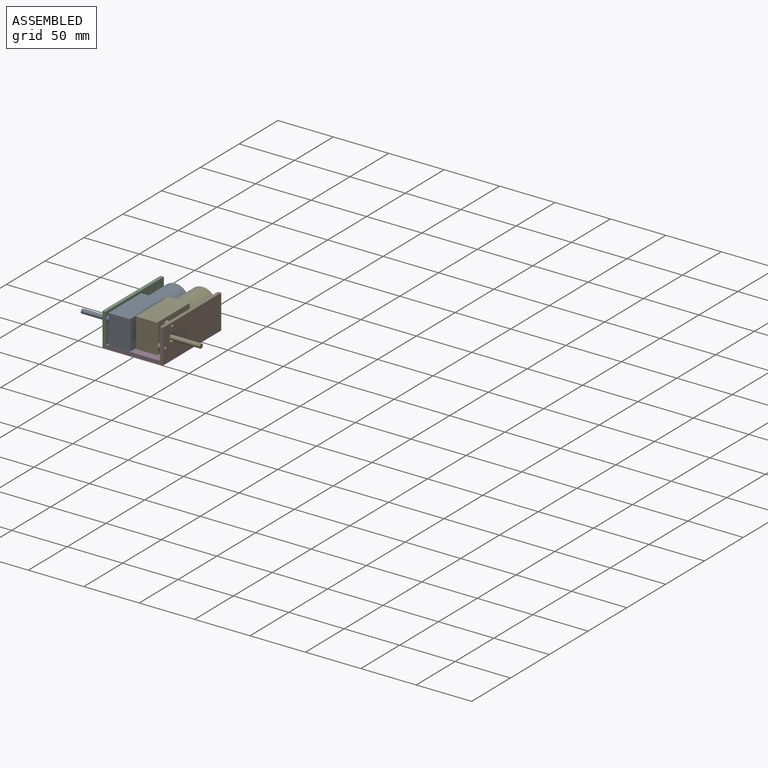
[diagram: assembled view]
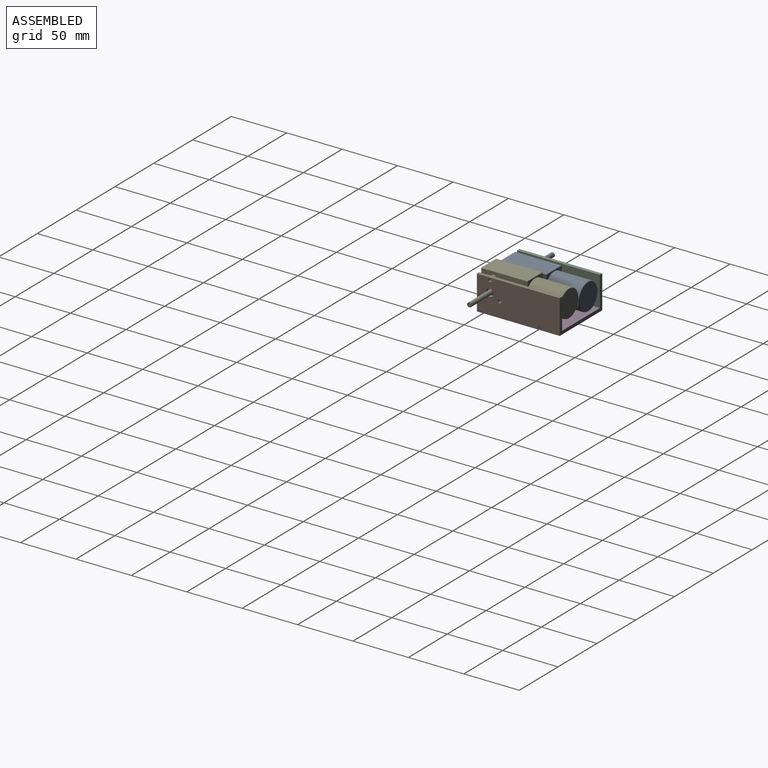
[diagram: assembled view, second angle]
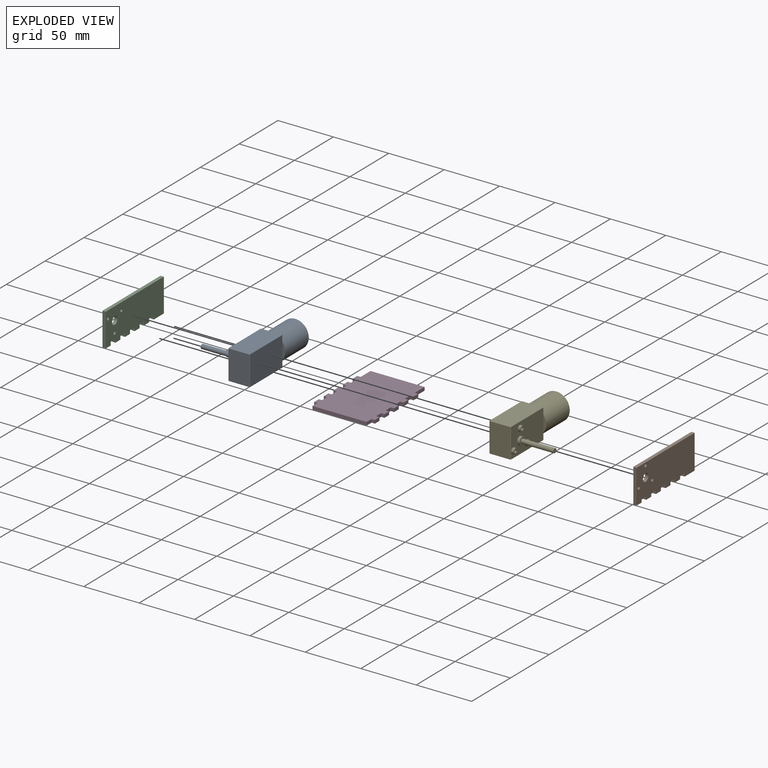
[diagram: exploded view]
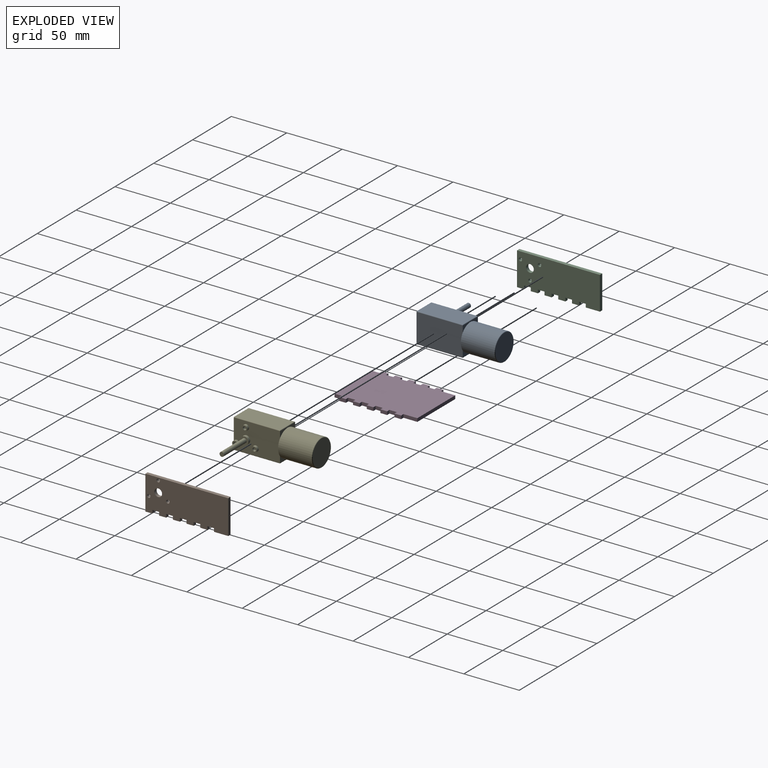
[diagram: exploded view, second angle]
ASSEMBLY  parts=5 mates=3
PART A: 44 faces, bbox 54.6x72.8x27 mm
  f0: plane 19.4x5.6mm, normal (0,1,0), area 43.6mm2, adj f5,f6,f24,f43
  f1: plane 19.4x5.6mm, normal (0,1,0), area 43.6mm2, adj f5,f6,f24,f30
  f2: plane 41x18.4mm, normal (0,0,1), area 754.4mm2, adj f37,f41,f42,f43
  f3: plane 26x18.4mm, normal (0,-1,0), area 478.4mm2, adj f31,f32,f34,f36,f37,f38
  f4: plane 41x18.4mm, normal (0,0,-1), area 754.4mm2, adj f28,f30,f32,f33
  f5: plane 41.5x26mm, normal (1,0,0), area 981.7mm2, adj f0,f1,f7,f10,f14,f18,f23,f28
  f6: plane 41.5x26mm, normal (-1,0,0), area 1079mm2, adj f0,f1,f26,f33,f38,f42
  f7: cylinder r=3.5mm len=7mm, axis (-1,0,0), area 52.8mm2, adj f5,f8
  f8: plane 7x7mm, normal (1,0,0), area 25.9mm2, adj f7,f21
  f9: cylinder r=1.5mm len=3mm, axis (-1,0,0), area 22.6mm2, adj f11,f12
  f10: cylinder r=2.5mm len=5mm, axis (-1,0,0), area 37.7mm2, adj f5,f11
  f11: plane 5x5mm, normal (1,0,0), area 12.6mm2, adj f9,f10
  f12: plane 3x3mm, normal (1,0,0), area 7.1mm2, adj f9
  f13: cylinder r=1.5mm len=3mm, axis (-1,0,0), area 22.6mm2, adj f15,f16
  f14: cylinder r=2.5mm len=5mm, axis (-1,0,0), area 37.7mm2, adj f5,f15,f34
  f15: plane 5x5mm, normal (1,0,0), area 12.6mm2, adj f13,f14
  f16: plane 3x3mm, normal (1,0,0), area 7.1mm2, adj f13
  f17: cylinder r=1.5mm len=3mm, axis (-1,0,0), area 22.6mm2, adj f19,f20
  f18: cylinder r=2.5mm len=5mm, axis (-1,0,0), area 37.7mm2, adj f5,f19
  f19: plane 5x5mm, normal (1,0,0), area 12.6mm2, adj f17,f18
  f20: plane 3x3mm, normal (1,0,0), area 7.1mm2, adj f17
  f21: cylinder r=2mm len=29.3mm, axis (-1,0,0), area 368.2mm2, adj f8,f22
  f22: plane 4x4mm, normal (1,0,0), area 12.6mm2, adj f21
  f23: plane 14.8x2.5mm, normal (0,-1,0), area 25.2mm2, adj f5,f24
  f24: cylinder r=12.2mm len=30.3mm, axis (0,-1,0), area 2322.6mm2, adj f0,f1,f23,f26,f27
  f25: plane 23.4x23.4mm, normal (0,1,0), area 430.1mm2, adj f27
  f26: plane 14.8x2.5mm, normal (0,-1,0), area 25.2mm2, adj f6,f24
  f27: torus R=11.7mm, axis (0,1,0), area 59.3mm2, adj f24,f25
  f28: cylinder r=0.5mm len=41.5mm, axis (0,-1,0), area 32.5mm2, adj f4,f5,f29,f30
  f29: sphere r=0.5mm, area 0.4mm2, adj f28,f31,f32
  f30: cylinder r=0.5mm len=19.4mm, axis (-1,0,0), area 15mm2, adj f1,f4,f28,f33
  f31: cylinder r=0.5mm len=5.55mm, axis (0,0,1), area 4.4mm2, adj f3,f5,f29,f34
  f32: cylinder r=0.5mm len=18.4mm, axis (1,0,0), area 14.5mm2, adj f3,f4,f29,f35
  f33: cylinder r=0.5mm len=41.5mm, axis (0,1,0), area 32.5mm2, adj f4,f6,f30,f35
  f34: bspline ~1.56x0.57mm, area 0.8mm2, adj f3,f14,f31,f36
  f35: sphere r=0.5mm, area 0.4mm2, adj f32,f33,f38
  f36: cylinder r=0.5mm len=19.35mm, axis (0,0,1), area 15.2mm2, adj f3,f5,f34,f39
  f37: cylinder r=0.5mm len=18.4mm, axis (-1,0,0), area 14.5mm2, adj f2,f3,f39,f40
  f38: cylinder r=0.5mm len=26mm, axis (0,0,-1), area 20.4mm2, adj f3,f6,f35,f40
  f39: sphere r=0.5mm, area 0.4mm2, adj f36,f37,f41
  f40: sphere r=0.5mm, area 0.4mm2, adj f37,f38,f42
  f41: cylinder r=0.5mm len=41.5mm, axis (0,1,0), area 32.5mm2, adj f2,f5,f39,f43
  f42: cylinder r=0.5mm len=41.5mm, axis (0,-1,0), area 32.5mm2, adj f2,f6,f40,f43
  f43: cylinder r=0.5mm len=19.4mm, axis (1,0,0), area 15mm2, adj f0,f2,f41,f42
PART B: 30 faces, bbox 74.8x3x30.8 mm
  f0: plane 3x3mm, normal (-1,0,0), area 9mm2, adj f1,f27,f28,f29
  f1: plane 6.4x3mm, normal (0,0,-1), area 19.2mm2, adj f0,f2,f28,f29
  f2: plane 3x3mm, normal (1,0,0), area 9mm2, adj f1,f3,f28,f29
  f3: plane 6x3mm, normal (0,0,-1), area 18mm2, adj f2,f4,f28,f29
  f4: plane 3x3mm, normal (-1,0,0), area 9mm2, adj f3,f5,f28,f29
  f5: plane 6.4x3mm, normal (0,0,-1), area 19.2mm2, adj f4,f6,f28,f29
  f6: plane 3x3mm, normal (1,0,0), area 9mm2, adj f5,f7,f28,f29
  f7: plane 6x3mm, normal (0,0,-1), area 18mm2, adj f6,f8,f28,f29
  f8: plane 3x3mm, normal (-1,0,0), area 9mm2, adj f7,f9,f28,f29
  f9: plane 6.4x3mm, normal (0,0,-1), area 19.2mm2, adj f8,f10,f28,f29
  f10: plane 3x3mm, normal (1,0,0), area 9mm2, adj f9,f11,f28,f29
  f11: plane 6x3mm, normal (0,0,-1), area 18mm2, adj f10,f12,f28,f29
  f12: plane 3x3mm, normal (-1,0,0), area 9mm2, adj f11,f13,f28,f29
  f13: plane 12.8x3mm, normal (0,0,-1), area 38.4mm2, adj f12,f14,f28,f29
  f14: plane 30.8x3mm, normal (1,0,0), area 92.4mm2, adj f13,f15,f28,f29
  f15: plane 74.8x3mm, normal (0,0,1), area 224.4mm2, adj f14,f16,f28,f29
  f16: plane 30.8x3mm, normal (-1,0,0), area 92.4mm2, adj f15,f17,f28,f29
  f17: plane 6.4x3mm, normal (0,0,-1), area 19.2mm2, adj f16,f18,f28,f29
  f18: plane 3x3mm, normal (1,0,0), area 9mm2, adj f17,f19,f28,f29
  f19: plane 6x3mm, normal (0,0,-1), area 18mm2, adj f18,f20,f28,f29
  f20: plane 3x3mm, normal (-1,0,0), area 9mm2, adj f19,f21,f28,f29
  f21: plane 6.4x3mm, normal (0,0,-1), area 19.2mm2, adj f20,f22,f28,f29
  f22: plane 3x3mm, normal (1,0,0), area 9mm2, adj f21,f27,f28,f29
  f23: cylinder r=3.5mm len=7mm, axis (0,1,0), area 66mm2, adj f28,f29
  f24: cylinder r=1.5mm len=3mm, axis (0,1,0), area 28.3mm2, adj f28,f29
  f25: cylinder r=1.5mm len=3mm, axis (0,1,0), area 28.3mm2, adj f28,f29
  f26: cylinder r=1.5mm len=3mm, axis (0,1,0), area 28.3mm2, adj f28,f29
  f27: plane 6x3mm, normal (0,0,-1), area 18mm2, adj f0,f22,f28,f29
  f28: plane 74.8x30.8mm, normal (0,-1,0), area 2154.1mm2, adj f0,f1,f2,f3,f4,f5,f6,f7
  f29: plane 74.8x30.8mm, normal (0,1,0), area 2154.1mm2, adj f0,f1,f2,f3,f4,f5,f6,f7
PART C: 30 faces, bbox 74.8x3x30 mm
  f0: plane 3x3mm, normal (-1,0,0), area 9mm2, adj f1,f27,f28,f29
  f1: plane 6.4x3mm, normal (0,0,-1), area 19.2mm2, adj f0,f2,f28,f29
  f2: plane 3x3mm, normal (1,0,0), area 9mm2, adj f1,f3,f28,f29
  f3: plane 6x3mm, normal (0,0,-1), area 18mm2, adj f2,f4,f28,f29
  f4: plane 3x3mm, normal (-1,0,0), area 9mm2, adj f3,f5,f28,f29
  f5: plane 6.4x3mm, normal (0,0,-1), area 19.2mm2, adj f4,f6,f28,f29
  f6: plane 3x3mm, normal (1,0,0), area 9mm2, adj f5,f7,f28,f29
  f7: plane 6x3mm, normal (0,0,-1), area 18mm2, adj f6,f8,f28,f29
  f8: plane 3x3mm, normal (-1,0,0), area 9mm2, adj f7,f9,f28,f29
  f9: plane 6.4x3mm, normal (0,0,-1), area 19.2mm2, adj f8,f10,f28,f29
  f10: plane 30x3mm, normal (1,0,0), area 90mm2, adj f9,f11,f28,f29
  f11: plane 74.8x3mm, normal (0,0,1), area 224.4mm2, adj f10,f12,f28,f29
  f12: plane 30x3mm, normal (-1,0,0), area 90mm2, adj f11,f13,f28,f29
  f13: plane 12.8x3mm, normal (0,0,-1), area 38.4mm2, adj f12,f14,f28,f29
  f14: plane 3x3mm, normal (1,0,0), area 9mm2, adj f13,f15,f28,f29
  f15: plane 6x3mm, normal (0,0,-1), area 18mm2, adj f14,f16,f28,f29
  f16: plane 3x3mm, normal (-1,0,0), area 9mm2, adj f15,f17,f28,f29
  f17: plane 6.4x3mm, normal (0,0,-1), area 19.2mm2, adj f16,f18,f28,f29
  f18: plane 3x3mm, normal (1,0,0), area 9mm2, adj f17,f19,f28,f29
  f19: plane 6x3mm, normal (0,0,-1), area 18mm2, adj f18,f20,f28,f29
  f20: plane 3x3mm, normal (-1,0,0), area 9mm2, adj f19,f21,f28,f29
  f21: plane 6.4x3mm, normal (0,0,-1), area 19.2mm2, adj f20,f22,f28,f29
  f22: plane 3x3mm, normal (1,0,0), area 9mm2, adj f21,f27,f28,f29
  f23: cylinder r=3.5mm len=7mm, axis (0,1,0), area 66mm2, adj f28,f29
  f24: cylinder r=1.5mm len=3mm, axis (0,1,0), area 28.3mm2, adj f28,f29
  f25: cylinder r=1.5mm len=3mm, axis (0,1,0), area 28.3mm2, adj f28,f29
  f26: cylinder r=1.5mm len=3mm, axis (0,1,0), area 28.3mm2, adj f28,f29
  f27: plane 6x3mm, normal (0,0,-1), area 18mm2, adj f0,f22,f28,f29
  f28: plane 74.8x30mm, normal (0,-1,0), area 2094.3mm2, adj f0,f1,f2,f3,f4,f5,f6,f7
  f29: plane 74.8x30mm, normal (0,1,0), area 2094.3mm2, adj f0,f1,f2,f3,f4,f5,f6,f7
PART D: 46 faces, bbox 74.8x3x54.8 mm
  f0: plane 12.77x3mm, normal (0,0,1), area 38.3mm2, adj f1,f43,f44,f45
  f1: plane 48.8x3mm, normal (-1,0,0), area 146.4mm2, adj f0,f2,f44,f45
  f2: plane 12.51x3mm, normal (0,0,-1), area 37.5mm2, adj f1,f3,f44,f45
  f3: plane 3x3mm, normal (-1,0,0), area 9mm2, adj f2,f4,f44,f45
  f4: plane 6x3mm, normal (0,0,-1), area 18mm2, adj f3,f5,f44,f45
  f5: plane 3x3mm, normal (1,0,0), area 9mm2, adj f4,f6,f44,f45
  f6: plane 6.69x3mm, normal (0,0,-1), area 20.1mm2, adj f5,f7,f44,f45
  f7: plane 3x3mm, normal (-1,0,0), area 9mm2, adj f6,f8,f44,f45
  f8: plane 6x3mm, normal (0,0,-1), area 18mm2, adj f7,f9,f44,f45
  f9: plane 3x3mm, normal (1,0,0), area 9mm2, adj f8,f10,f44,f45
  f10: plane 6.4x3mm, normal (0,0,-1), area 19.2mm2, adj f9,f11,f44,f45
  f11: plane 3x3mm, normal (-1,0,0), area 9mm2, adj f10,f12,f44,f45
  f12: plane 6x3mm, normal (0,0,-1), area 18mm2, adj f11,f13,f44,f45
  f13: plane 3x3mm, normal (1,0,0), area 9mm2, adj f12,f14,f44,f45
  f14: plane 6.4x3mm, normal (0,0,-1), area 19.2mm2, adj f13,f15,f44,f45
  f15: plane 3x3mm, normal (-1,0,0), area 9mm2, adj f14,f16,f44,f45
  f16: plane 6x3mm, normal (0,0,-1), area 18mm2, adj f15,f17,f44,f45
  f17: plane 3x3mm, normal (1,0,0), area 9mm2, adj f16,f18,f44,f45
  f18: plane 6.4x3mm, normal (0,0,-1), area 19.2mm2, adj f17,f19,f44,f45
  f19: plane 3x3mm, normal (-1,0,0), area 9mm2, adj f18,f20,f44,f45
  f20: plane 6x3mm, normal (0,0,-1), area 18mm2, adj f19,f21,f44,f45
  f21: plane 3x3mm, normal (1,0,0), area 9mm2, adj f20,f22,f44,f45
  f22: plane 6.4x3mm, normal (0,0,-1), area 19.2mm2, adj f21,f23,f44,f45
  f23: plane 48.8x3mm, normal (1,0,0), area 146.4mm2, adj f22,f24,f44,f45
  f24: plane 6.4x3mm, normal (0,0,1), area 19.2mm2, adj f23,f25,f44,f45
  f25: plane 3x3mm, normal (1,0,0), area 9mm2, adj f24,f26,f44,f45
  f26: plane 6x3mm, normal (0,0,1), area 18mm2, adj f25,f27,f44,f45
  f27: plane 3x3mm, normal (-1,0,0), area 9mm2, adj f26,f28,f44,f45
  f28: plane 6.4x3mm, normal (0,0,1), area 19.2mm2, adj f27,f29,f44,f45
  f29: plane 3x3mm, normal (1,0,0), area 9mm2, adj f28,f30,f44,f45
  f30: plane 6x3mm, normal (0,0,1), area 18mm2, adj f29,f31,f44,f45
  f31: plane 3x3mm, normal (-1,0,0), area 9mm2, adj f30,f32,f44,f45
  f32: plane 6.4x3mm, normal (0,0,1), area 19.2mm2, adj f31,f33,f44,f45
  f33: plane 3x3mm, normal (1,0,0), area 9mm2, adj f32,f34,f44,f45
  f34: plane 6x3mm, normal (0,0,1), area 18mm2, adj f33,f35,f44,f45
  f35: plane 3x3mm, normal (-1,0,0), area 9mm2, adj f34,f36,f44,f45
  f36: plane 6.4x3mm, normal (0,0,1), area 19.2mm2, adj f35,f37,f44,f45
  f37: plane 3x3mm, normal (1,0,0), area 9mm2, adj f36,f38,f44,f45
  f38: plane 6x3mm, normal (0,0,1), area 18mm2, adj f37,f39,f44,f45
  f39: plane 3x3mm, normal (-1,0,0), area 9mm2, adj f38,f40,f44,f45
  f40: plane 6.43x3mm, normal (0,0,1), area 19.3mm2, adj f39,f41,f44,f45
  f41: plane 3x3mm, normal (1,0,0), area 9mm2, adj f40,f42,f44,f45
  f42: plane 6x3mm, normal (0,0,1), area 18mm2, adj f41,f43,f44,f45
  f43: plane 3x3mm, normal (-1,0,0), area 9mm2, adj f0,f42,f44,f45
  f44: plane 74.8x54.8mm, normal (0,-1,0), area 3830.2mm2, adj f0,f1,f2,f3,f4,f5,f6,f7
  f45: plane 74.8x54.8mm, normal (0,1,0), area 3830.2mm2, adj f0,f1,f2,f3,f4,f5,f6,f7
PART E: same geometry as A
PLACE A rot(axis=(0,-1,0),180deg) t=(-1.17,-32.19,-19.02)mm
PLACE B rot(axis=(0,0,1),90deg) t=(25.83,-15.79,-20.12)mm
PLACE C rot(axis=(0,0,-1),90deg) t=(-22.97,-15.79,-20.52)mm
PLACE D rot(axis=(0.58,-0.58,-0.58),120deg) t=(1.43,-15.79,-32.52)mm
PLACE E t=(4.03,-32.19,-15.22)mm
MATE pin_slot C.f28 <-> D.f26  axis (-1,0,0) through (-25.97,-43.79,-32.52)mm
MATE pin_slot A.f9 <-> C.f26  axis (-1,0,0) through (-22.97,-41.59,-27.12)mm
MATE pin_slot E.f9 <-> B.f24  axis (1,0,0) through (25.83,-41.59,-7.12)mm
